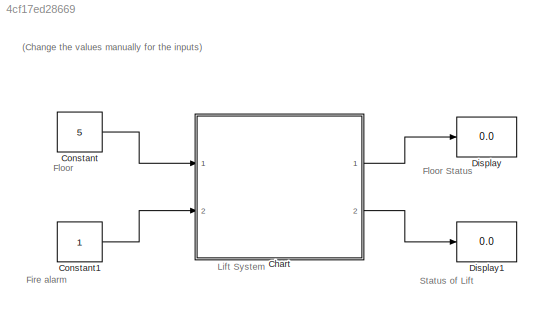
MODEL slx_4cf17ed28669
KIND model
CONFIG AbsTol = auto
CONFIG EnableMultiTasking = off
CONFIG FixedStep = auto
CONFIG MaxStep = auto
CONFIG MinStep = auto
CONFIG RelTol = 1e-3
CONFIG SampleTimeConstraint = Unconstrained
CONFIG SolverName = VariableStepAuto
CONFIG StartTime = 0.0
CONFIG StopTime = inf
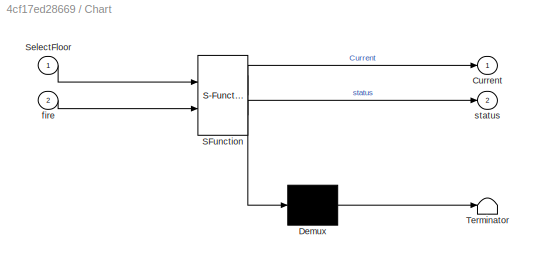
BLOCK [SubSystem] Chart
  ErrorFcn = Stateflow.Translate.translate
  PermitHierarchicalResolution = ExplicitOnly
  Ports = [2, 2]
  RequestExecContextInheritance = off
  SFBlockType = Chart
  TreatAsAtomicUnit = on
BLOCK [Demux] Chart/ Demux 
  Outputs = 1
  Ports = [1, 1]
BLOCK [S-Function] Chart/ SFunction 
  EnableBusSupport = on
  FunctionName = sf_sfun
  PortCounts = [2 3]
  Ports = [2, 3]
  SFcnIsStateOwnerBlock = off
  SFunctionDeploymentMode = off
  Tag = Stateflow S-Function 3
BLOCK [Terminator] Chart/ Terminator 
BLOCK [Outport] Chart/Current
BLOCK [Inport] Chart/SelectFloor
BLOCK [Inport] Chart/fire
  Port = 2
BLOCK [Outport] Chart/status
  Port = 2
BLOCK [Constant] Constant
  Value = 5
BLOCK [Constant] Constant1
BLOCK [Display] Display
  Decimation = 1
  Ports = [1]
BLOCK [Display] Display1
  Decimation = 1
  Ports = [1]
ANNOTATION (root): Fire alarm
ANNOTATION (root): Lift System
ANNOTATION (root): (Change the values manually for the inputs)
ANNOTATION (root): Floor
ANNOTATION (root): Status of Lift
ANNOTATION (root): Floor Status
LINE Chart:1 -> Display:1
LINE Chart:2 -> Display1:1
LINE Constant1:1 -> Chart:2
LINE Constant:1 -> Chart:1
CHART Chart states=11 transitions=31
  STATE_LABEL 'LiftOperation\nentry:\nstatus=0;'
  STATE_LABEL 'LiftOn\n'
  STATE_LABEL 'GroundFloor\nentry:\nstatus=1;\nduring:\nCurrent=0;\nCheckFloor(Current);\nexit:\nstatus=0;\n'
  STATE_LABEL 'FirstFloor\nentry:\nstatus=1;\nduring:\nCurrent=1;\nCheckFloor(Current);\nexit:\nstatus=0;'
  STATE_LABEL 'SecondFloor\nentry:\nstatus=1;\nduring:\nCurrent=2;\nCheckFloor(Current);\nexit:\nstatus=0;\n'
  STATE_LABEL 'ThirdFloor\nentry:\nstatus=1;\nduring:\nCurrent=3;\nCheckFloor(Current);\nexit:\nstatus=0;\n'
  STATE_LABEL 'FourthFloor\nentry:\nstatus=1\nduring:\nCurrent=4;\nCheckFloor(Current);\nexit:\nstatus=0;'
  STATE_LABEL 'FifthFloor\nentry:\nstatus=1;\nduring:\nCurrent=5;\nCheckFloor(Current);\nexit:\nstatus=0;\n'
  STATE_LABEL 'up'
  STATE_LABEL 'down'
  STATE_LABEL 'up'
  STATE_LABEL 'down'
  STATE_LABEL 'up'
  STATE_LABEL 'down'
  STATE_LABEL 'up'
  STATE_LABEL 'down'
  STATE_LABEL 'up'
  STATE_LABEL 'down'
  STATE_LABEL 'LiftOff\nen:\nstatus=0;\nalarmStatus==0;'
  STATE_LABEL '[fire==0]'
  STATE_LABEL '[fire==1]'
  STATE_LABEL 'LiftOn\n'
  STATE_LABEL 'GroundFloor\nentry:\nstatus=1;\nduring:\nCurrent=0;\nCheckFloor(Current);\nexit:\nstatus=0;\n'
  STATE_LABEL 'FirstFloor\nentry:\nstatus=1;\nduring:\nCurrent=1;\nCheckFloor(Current);\nexit:\nstatus=0;'
  STATE_LABEL 'SecondFloor\nentry:\nstatus=1;\nduring:\nCurrent=2;\nCheckFloor(Current);\nexit:\nstatus=0;\n'
  STATE_LABEL 'ThirdFloor\nentry:\nstatus=1;\nduring:\nCurrent=3;\nCheckFloor(Current);\nexit:\nstatus=0;\n'
  STATE_LABEL 'FourthFloor\nentry:\nstatus=1\nduring:\nCurrent=4;\nCheckFloor(Current);\nexit:\nstatus=0;'
  STATE_LABEL 'FifthFloor\nentry:\nstatus=1;\nduring:\nCurrent=5;\nCheckFloor(Current);\nexit:\nstatus=0;\n'
  STATE_LABEL 'up'
  STATE_LABEL 'down'
  STATE_LABEL 'up'
  STATE_LABEL 'down'
  STATE_LABEL 'up'
  STATE_LABEL 'down'
  STATE_LABEL 'up'
  STATE_LABEL 'down'
  STATE_LABEL 'up'
  STATE_LABEL 'down'
  STATE_LABEL 'GroundFloor\nentry:\nstatus=1;\nduring:\nCurrent=0;\nCheckFloor(Current);\nexit:\nstatus=0;\n'
  STATE_LABEL 'FirstFloor\nentry:\nstatus=1;\nduring:\nCurrent=1;\nCheckFloor(Current);\nexit:\nstatus=0;'
CHART  states=0 transitions=0
